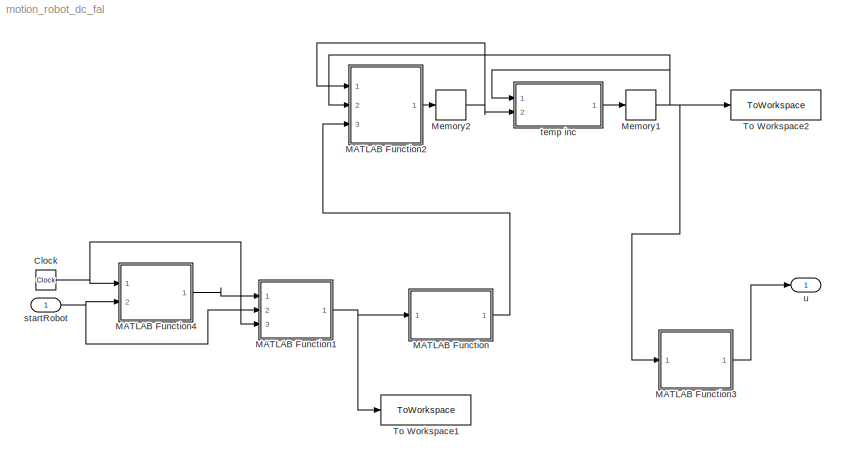
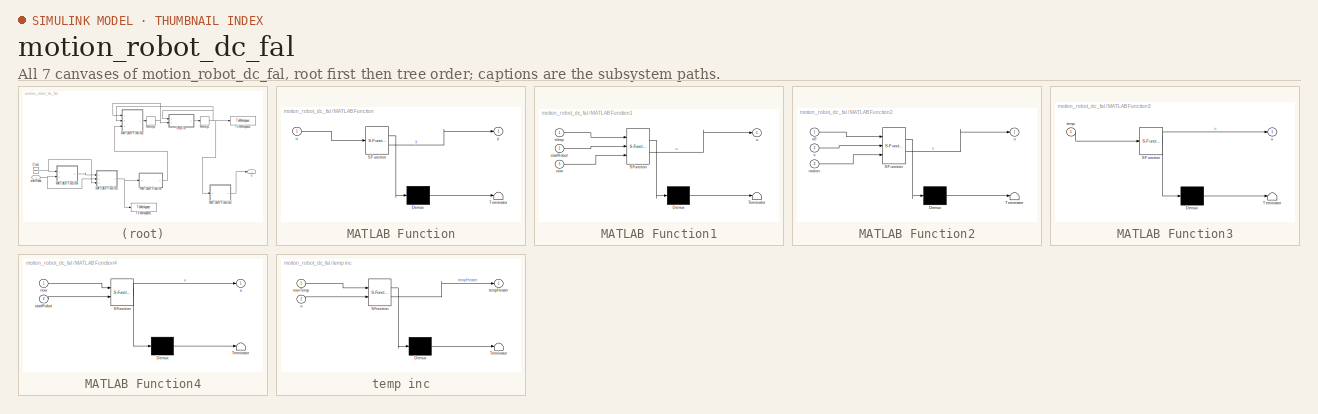
[diagram: thumbnail index - all 7 canvases of the model, root first then tree order]
MODEL motion_robot_dc_fal
KIND model
BLOCK [Clock] Clock
  SID = 109
BLOCK [SubSystem] MATLAB Function
  ErrorFcn = Stateflow.Translate.translate
  PermitHierarchicalResolution = ExplicitOnly
  Ports = [1, 1]
  RequestExecContextInheritance = off
  SFBlockType = MATLAB Function
  SID = 405
  TreatAsAtomicUnit = on
BLOCK [Demux] MATLAB Function/ Demux 
  Outputs = 1
  Ports = [1, 1]
  SID = 405::25
BLOCK [S-Function] MATLAB Function/ SFunction 
  EnableBusSupport = on
  FunctionName = sf_sfun
  Parameters = robotDis,sensitivityDis
  PortCounts = [1 2]
  Ports = [1, 2]
  SFcnIsStateOwnerBlock = off
  SFunctionDeploymentMode = off
  SID = 405::24
  Tag = Stateflow S-Function 2
BLOCK [Terminator] MATLAB Function/ Terminator 
  SID = 405::26
BLOCK [Inport] MATLAB Function/u
  SID = 405::28
BLOCK [Outport] MATLAB Function/y
  SID = 405::5
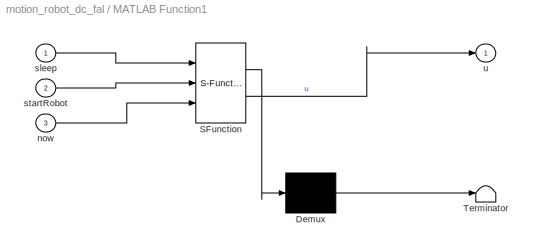
BLOCK [SubSystem] MATLAB Function1
  ErrorFcn = Stateflow.Translate.translate
  PermitHierarchicalResolution = ExplicitOnly
  Ports = [3, 1]
  RequestExecContextInheritance = off
  SFBlockType = MATLAB Function
  SID = 409
  TreatAsAtomicUnit = on
BLOCK [Demux] MATLAB Function1/ Demux 
  Outputs = 1
  Ports = [1, 1]
  SID = 409::32
BLOCK [S-Function] MATLAB Function1/ SFunction 
  EnableBusSupport = on
  FunctionName = sf_sfun
  Parameters = timeSleep
  PortCounts = [3 2]
  Ports = [3, 2]
  SFcnIsStateOwnerBlock = off
  SFunctionDeploymentMode = off
  SID = 409::31
  Tag = Stateflow S-Function 1
BLOCK [Terminator] MATLAB Function1/ Terminator 
  SID = 409::33
BLOCK [Inport] MATLAB Function1/now
  Port = 3
  SID = 409::34
BLOCK [Inport] MATLAB Function1/sleep
  SID = 409::27
BLOCK [Inport] MATLAB Function1/startRobot
  Port = 2
  SID = 409::30
BLOCK [Outport] MATLAB Function1/u
  SID = 409::5
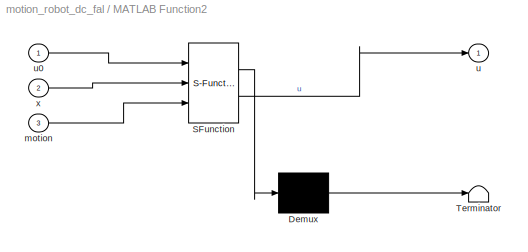
BLOCK [SubSystem] MATLAB Function2
  ErrorFcn = Stateflow.Translate.translate
  PermitHierarchicalResolution = ExplicitOnly
  Ports = [3, 1]
  RequestExecContextInheritance = off
  SFBlockType = MATLAB Function
  SID = 410
  TreatAsAtomicUnit = on
BLOCK [Demux] MATLAB Function2/ Demux 
  Outputs = 1
  Ports = [1, 1]
  SID = 410::30
BLOCK [S-Function] MATLAB Function2/ SFunction 
  EnableBusSupport = on
  FunctionName = sf_sfun
  Parameters = maxT,minT
  PortCounts = [3 2]
  Ports = [3, 2]
  SFcnIsStateOwnerBlock = off
  SFunctionDeploymentMode = off
  SID = 410::29
  Tag = Stateflow S-Function 3
BLOCK [Terminator] MATLAB Function2/ Terminator 
  SID = 410::31
BLOCK [Inport] MATLAB Function2/motion
  Port = 3
  SID = 410::32
BLOCK [Outport] MATLAB Function2/u
  SID = 410::5
BLOCK [Inport] MATLAB Function2/u0
  SID = 410::23
BLOCK [Inport] MATLAB Function2/x
  Port = 2
  SID = 410::1
BLOCK [SubSystem] MATLAB Function3
  ErrorFcn = Stateflow.Translate.translate
  PermitHierarchicalResolution = ExplicitOnly
  Ports = [1, 1]
  RequestExecContextInheritance = off
  SFBlockType = MATLAB Function
  SID = 415
  TreatAsAtomicUnit = on
BLOCK [Demux] MATLAB Function3/ Demux 
  Outputs = 1
  Ports = [1, 1]
  SID = 415::32
BLOCK [S-Function] MATLAB Function3/ SFunction 
  EnableBusSupport = on
  FunctionName = sf_sfun
  PortCounts = [1 2]
  Ports = [1, 2]
  SFcnIsStateOwnerBlock = off
  SFunctionDeploymentMode = off
  SID = 415::31
  Tag = Stateflow S-Function 6
BLOCK [Terminator] MATLAB Function3/ Terminator 
  SID = 415::33
BLOCK [Inport] MATLAB Function3/temp
  SID = 415::27
BLOCK [Outport] MATLAB Function3/u
  SID = 415::5
BLOCK [SubSystem] MATLAB Function4
  ErrorFcn = Stateflow.Translate.translate
  PermitHierarchicalResolution = ExplicitOnly
  Ports = [2, 1]
  RequestExecContextInheritance = off
  SFBlockType = MATLAB Function
  SID = 108
  TreatAsAtomicUnit = on
BLOCK [Demux] MATLAB Function4/ Demux 
  Outputs = 1
  Ports = [1, 1]
  SID = 108::32
BLOCK [S-Function] MATLAB Function4/ SFunction 
  EnableBusSupport = on
  FunctionName = sf_sfun
  Parameters = timeSleep
  PortCounts = [2 2]
  Ports = [2, 2]
  SFcnIsStateOwnerBlock = off
  SFunctionDeploymentMode = off
  SID = 108::31
  Tag = Stateflow S-Function 5
BLOCK [Terminator] MATLAB Function4/ Terminator 
  SID = 108::33
BLOCK [Inport] MATLAB Function4/now
  SID = 108::27
BLOCK [Inport] MATLAB Function4/startRobot
  Port = 2
  SID = 108::30
BLOCK [Outport] MATLAB Function4/u
  SID = 108::5
BLOCK [Memory] Memory1
  InitialCondition = initT
  SID = 411
BLOCK [Memory] Memory2
  SID = 412
BLOCK [ToWorkspace] To Workspace1
  FixptAsFi = on
  MaxDataPoints = inf
  Ports = [1]
  SID = 406
  SampleTime = -1
  VariableName = robotOn
BLOCK [ToWorkspace] To Workspace2
  FixptAsFi = on
  MaxDataPoints = inf
  Ports = [1]
  SID = 413
  SampleTime = -1
  VariableName = Temp2
BLOCK [Inport] startRobot
  SID = 407
BLOCK [SubSystem] temp inc
  ErrorFcn = Stateflow.Translate.translate
  PermitHierarchicalResolution = ExplicitOnly
  Ports = [2, 1]
  RequestExecContextInheritance = off
  SFBlockType = MATLAB Function
  SID = 414
  TreatAsAtomicUnit = on
BLOCK [Demux] temp inc/ Demux 
  Outputs = 1
  Ports = [1, 1]
  SID = 414::36
BLOCK [S-Function] temp inc/ SFunction 
  EnableBusSupport = on
  FunctionName = sf_sfun
  Parameters = Tdelta,fixedStep
  PortCounts = [2 2]
  Ports = [2, 2]
  SFcnIsStateOwnerBlock = off
  SFunctionDeploymentMode = off
  SID = 414::35
  Tag = Stateflow S-Function 4
BLOCK [Terminator] temp inc/ Terminator 
  SID = 414::37
BLOCK [Inport] temp inc/nowTemp
  SID = 414::33
BLOCK [Outport] temp inc/tempHeater
  SID = 414::5
BLOCK [Inport] temp inc/u
  Port = 2
  SID = 414::27
BLOCK [Outport] u
  SID = 408
NET Clock:1 -> MATLAB Function1:3, MATLAB Function4:1
LINE MATLAB Function/ Demux :1 -> MATLAB Function/ Terminator :1
LINE MATLAB Function/ SFunction :1 -> MATLAB Function/ Demux :1
LINE MATLAB Function/ SFunction :2 -> MATLAB Function/y:1
LINE MATLAB Function/u:1 -> MATLAB Function/ SFunction :1
LINE MATLAB Function1/ Demux :1 -> MATLAB Function1/ Terminator :1
LINE MATLAB Function1/ SFunction :1 -> MATLAB Function1/ Demux :1
LINE MATLAB Function1/ SFunction :2 -> MATLAB Function1/u:1
LINE MATLAB Function1/now:1 -> MATLAB Function1/ SFunction :3
LINE MATLAB Function1/sleep:1 -> MATLAB Function1/ SFunction :1
LINE MATLAB Function1/startRobot:1 -> MATLAB Function1/ SFunction :2
NET MATLAB Function1:1 -> MATLAB Function:1, To Workspace1:1
LINE MATLAB Function2/ Demux :1 -> MATLAB Function2/ Terminator :1
LINE MATLAB Function2/ SFunction :1 -> MATLAB Function2/ Demux :1
LINE MATLAB Function2/ SFunction :2 -> MATLAB Function2/u:1
LINE MATLAB Function2/motion:1 -> MATLAB Function2/ SFunction :3
LINE MATLAB Function2/u0:1 -> MATLAB Function2/ SFunction :1
LINE MATLAB Function2/x:1 -> MATLAB Function2/ SFunction :2
LINE MATLAB Function2:1 -> Memory2:1
LINE MATLAB Function3/ Demux :1 -> MATLAB Function3/ Terminator :1
LINE MATLAB Function3/ SFunction :1 -> MATLAB Function3/ Demux :1
LINE MATLAB Function3/ SFunction :2 -> MATLAB Function3/u:1
LINE MATLAB Function3/temp:1 -> MATLAB Function3/ SFunction :1
LINE MATLAB Function3:1 -> u:1
LINE MATLAB Function4/ Demux :1 -> MATLAB Function4/ Terminator :1
LINE MATLAB Function4/ SFunction :1 -> MATLAB Function4/ Demux :1
LINE MATLAB Function4/ SFunction :2 -> MATLAB Function4/u:1
LINE MATLAB Function4/now:1 -> MATLAB Function4/ SFunction :1
LINE MATLAB Function4/startRobot:1 -> MATLAB Function4/ SFunction :2
LINE MATLAB Function4:1 -> MATLAB Function1:1
LINE MATLAB Function:1 -> MATLAB Function2:3
NET Memory1:1 -> MATLAB Function2:2, MATLAB Function3:1, To Workspace2:1, temp inc:1
NET Memory2:1 -> MATLAB Function2:1, temp inc:2
NET startRobot:1 -> MATLAB Function1:2, MATLAB Function4:2
LINE temp inc/ Demux :1 -> temp inc/ Terminator :1
LINE temp inc/ SFunction :1 -> temp inc/ Demux :1
LINE temp inc/ SFunction :2 -> temp inc/tempHeater:1
LINE temp inc/nowTemp:1 -> temp inc/ SFunction :1
LINE temp inc/u:1 -> temp inc/ SFunction :2
LINE temp inc:1 -> Memory1:1
note: NET lines group one-source signal fan-out (src -> all destinations, sorted); 1:1 wires keep LINE
CHART MATLAB Function1 states=1 transitions=1
  STATE_LABEL 'eML_blk_kernel()'
CHART MATLAB Function states=1 transitions=1
  STATE_LABEL 'eML_blk_kernel()'
CHART MATLAB Function2 states=1 transitions=1
  STATE_LABEL 'eML_blk_kernel()'
CHART temp inc states=1 transitions=1
  STATE_LABEL 'eML_blk_kernel()'
CHART MATLAB Function4 states=1 transitions=1
  STATE_LABEL 'eML_blk_kernel()'
CHART MATLAB Function3 states=1 transitions=1
  STATE_LABEL 'eML_blk_kernel()'
